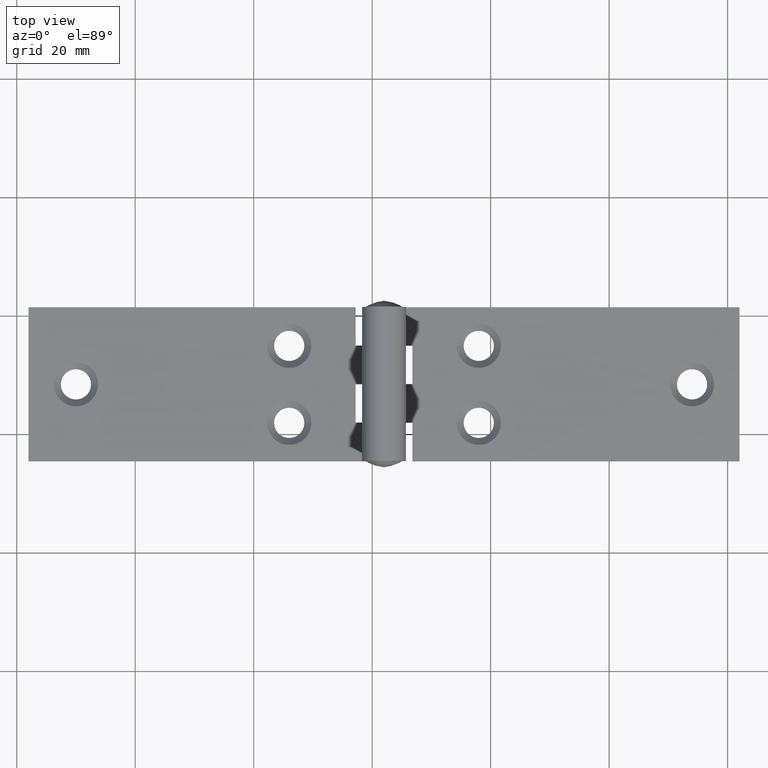
[diagram: clean part render]
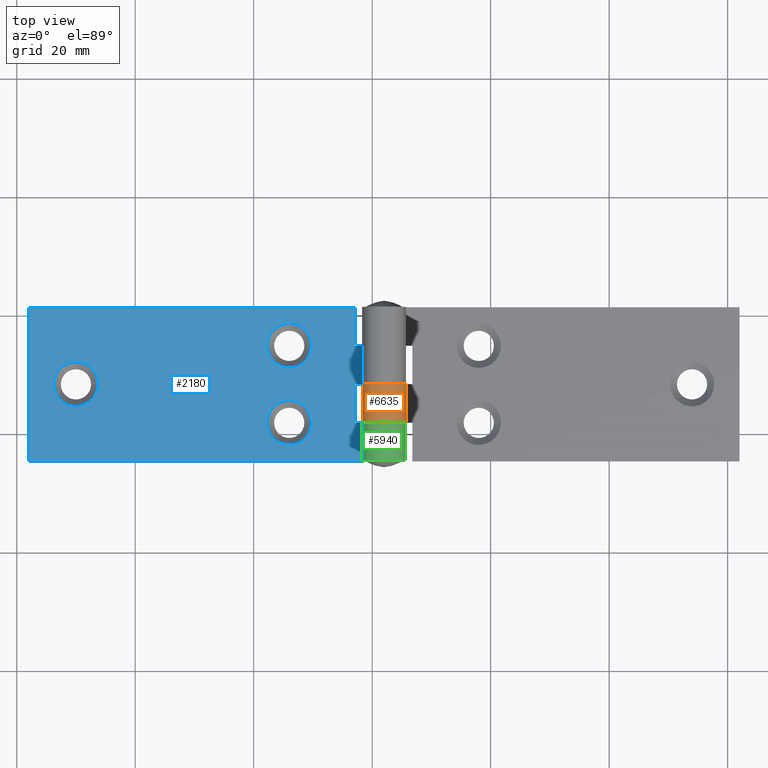
[diagram: same view with three faces highlighted in distinct colors, each labeled with its STEP entity id]
A machine part, top view with three faces highlighted in distinct colors.
Their STEP definitions:

[orange] entity #6635 — the highlighted cylindrical surface (edge-blend (fillet) strip) has radius 3.7 mm, axis along (0, 1, -0).
#126 = CARTESIAN_POINT ( 'NONE',  ( 60.00000000000000000, 6.500000000000000000, 0.000000000000000000 ) ) ;
#305 = CARTESIAN_POINT ( 'NONE',  ( 60.00000000000000000, 6.500000000000000000, 3.700000000000000178 ) ) ;
#861 = CARTESIAN_POINT ( 'NONE',  ( 60.00000000000000000, -1.249000902703299136E-15, 0.000000000000000000 ) ) ;
#1061 = VECTOR ( 'NONE', #2871, 1000.000000000000000 ) ;
#1103 = EDGE_CURVE ( 'NONE', #2914, #3187, #9356, .T. ) ;
#1182 = FACE_OUTER_BOUND ( 'NONE', #9848, .T. ) ;
#1580 = LINE ( 'NONE', #9441, #5711 ) ;
#1957 = CARTESIAN_POINT ( 'NONE',  ( 60.00000000000000000, 13.00000000000000000, 2.508278806333708124E-18 ) ) ;
#2081 = CIRCLE ( 'NONE', #4312, 3.700000000000001066 ) ;
#2871 = DIRECTION ( 'NONE',  ( -0.000000000000000000, -1.000000000000000000, -0.000000000000000000 ) ) ;
#2914 = VERTEX_POINT ( 'NONE', #126 ) ;
#3187 = VERTEX_POINT ( 'NONE', #861 ) ;
#3439 = ORIENTED_EDGE ( 'NONE', *, *, #11425, .T. ) ;
#3482 = AXIS2_PLACEMENT_3D ( 'NONE', #10464, #5176, #7776 ) ;
#3513 = CARTESIAN_POINT ( 'NONE',  ( 60.00000000000000000, 13.00000000000000000, 3.700000000000000178 ) ) ;
#3628 = DIRECTION ( 'NONE',  ( 0.000000000000000000, 0.000000000000000000, -1.000000000000000000 ) ) ;
#4312 = AXIS2_PLACEMENT_3D ( 'NONE', #305, #4661, #6503 ) ;
#4661 = DIRECTION ( 'NONE',  ( 0.000000000000000000, 1.000000000000000000, 0.000000000000000000 ) ) ;
#5176 = DIRECTION ( 'NONE',  ( 2.602085213965210149E-16, 1.000000000000000000, -0.000000000000000000 ) ) ;
#5482 = CARTESIAN_POINT ( 'NONE',  ( 57.18397443193425289, 6.500000000000000000, 1.300000000000001155 ) ) ;
#5544 = ORIENTED_EDGE ( 'NONE', *, *, #9196, .F. ) ;
#5711 = VECTOR ( 'NONE', #5908, 1000.000000000000000 ) ;
#5908 = DIRECTION ( 'NONE',  ( -0.000000000000000000, -1.000000000000000000, -0.000000000000000000 ) ) ;
#6350 = ORIENTED_EDGE ( 'NONE', *, *, #8824, .T. ) ;
#6503 = DIRECTION ( 'NONE',  ( 0.000000000000000000, 0.000000000000000000, 1.000000000000000000 ) ) ;
#6609 = VERTEX_POINT ( 'NONE', #6928 ) ;
#6635 = ADVANCED_FACE ( 'NONE', ( #1182 ), #8496, .T. ) ;
#6739 = VERTEX_POINT ( 'NONE', #5482 ) ;
#6928 = CARTESIAN_POINT ( 'NONE',  ( 57.18397443193425289, -1.001969626695620877E-15, 1.300000000000001155 ) ) ;
#7636 = ORIENTED_EDGE ( 'NONE', *, *, #1103, .F. ) ;
#7776 = DIRECTION ( 'NONE',  ( -1.000000000000000000, 2.602085213965209163E-16, 0.000000000000000000 ) ) ;
#8496 = CYLINDRICAL_SURFACE ( 'NONE', #8959, 3.700000000000001066 ) ;
#8584 = CIRCLE ( 'NONE', #3482, 3.700000000000001954 ) ;
#8824 = EDGE_CURVE ( 'NONE', #6739, #6609, #1580, .T. ) ;
#8885 = DIRECTION ( 'NONE',  ( -0.000000000000000000, -1.000000000000000000, -0.000000000000000000 ) ) ;
#8959 = AXIS2_PLACEMENT_3D ( 'NONE', #3513, #8885, #3628 ) ;
#9196 = EDGE_CURVE ( 'NONE', #6739, #2914, #2081, .T. ) ;
#9356 = LINE ( 'NONE', #1957, #1061 ) ;
#9441 = CARTESIAN_POINT ( 'NONE',  ( 57.18397443193425289, 13.00000000000000000, 1.300000000000000711 ) ) ;
#9848 = EDGE_LOOP ( 'NONE', ( #7636, #5544, #6350, #3439 ) ) ;
#10464 = CARTESIAN_POINT ( 'NONE',  ( 60.00000000000000000, -1.734723475976807094E-15, 3.700000000000000178 ) ) ;
#11425 = EDGE_CURVE ( 'NONE', #6609, #3187, #8584, .T. ) ;

[blue] entity #2180 — the highlighted planar face has unit normal (0, 0, -1).
#78 = DIRECTION ( 'NONE',  ( 0.000000000000000000, 1.000000000000000000, 0.000000000000000000 ) ) ;
#226 = VERTEX_POINT ( 'NONE', #5418 ) ;
#386 = EDGE_LOOP ( 'NONE', ( #3147 ) ) ;
#590 = LINE ( 'NONE', #1117, #10278 ) ;
#608 = CARTESIAN_POINT ( 'NONE',  ( 44.00000000000000000, -6.500000000000000000, 1.199999999999999956 ) ) ;
#646 = CARTESIAN_POINT ( 'NONE',  ( 40.24999999999997868, 6.500000000000000000, 1.199999999999999956 ) ) ;
#663 = ORIENTED_EDGE ( 'NONE', *, *, #1122, .T. ) ;
#697 = CARTESIAN_POINT ( 'NONE',  ( 55.20000000000000284, 13.00000000000000000, 1.199999999999999956 ) ) ;
#792 = CARTESIAN_POINT ( 'NONE',  ( 0.000000000000000000, 13.00000000000000000, 1.199999999999999956 ) ) ;
#1099 = LINE ( 'NONE', #7587, #6208 ) ;
#1117 = CARTESIAN_POINT ( 'NONE',  ( 60.00000000000000000, 13.00000000000000000, 1.199999999999997957 ) ) ;
#1122 = EDGE_CURVE ( 'NONE', #7770, #10318, #3262, .T. ) ;
#1123 = AXIS2_PLACEMENT_3D ( 'NONE', #608, #4229, #5065 ) ;
#1652 = CARTESIAN_POINT ( 'NONE',  ( 40.24999999999997868, -6.500000000000000000, 1.199999999999999956 ) ) ;
#1686 = DIRECTION ( 'NONE',  ( 0.000000000000000000, 0.000000000000000000, -1.000000000000000000 ) ) ;
#1731 = DIRECTION ( 'NONE',  ( -1.000000000000000000, 0.000000000000000000, 0.000000000000000000 ) ) ;
#1812 = VECTOR ( 'NONE', #2592, 1000.000000000000000 ) ;
#2163 = CARTESIAN_POINT ( 'NONE',  ( 60.00000000000000000, -13.00000000000000000, 1.199999999999997957 ) ) ;
#2180 = ADVANCED_FACE ( 'NONE', ( #8450, #2922, #2648, #4038 ), #9515, .F. ) ;
#2181 = CARTESIAN_POINT ( 'NONE',  ( 0.000000000000000000, -13.00000000000000000, 1.199999999999999956 ) ) ;
#2211 = LINE ( 'NONE', #2969, #5120 ) ;
#2254 = ORIENTED_EDGE ( 'NONE', *, *, #10009, .F. ) ;
#2363 = CARTESIAN_POINT ( 'NONE',  ( 55.20000000000000284, -6.500000000000000000, 1.200000000000001510 ) ) ;
#2401 = ORIENTED_EDGE ( 'NONE', *, *, #8217, .F. ) ;
#2592 = DIRECTION ( 'NONE',  ( 1.000000000000000000, 0.000000000000000000, 0.000000000000000000 ) ) ;
#2648 = FACE_BOUND ( 'NONE', #386, .T. ) ;
#2671 = EDGE_CURVE ( 'NONE', #10318, #10832, #4530, .T. ) ;
#2729 = DIRECTION ( 'NONE',  ( 0.000000000000000000, -1.000000000000000000, 0.000000000000000000 ) ) ;
#2848 = DIRECTION ( 'NONE',  ( -0.000000000000000000, -1.000000000000000000, -0.000000000000000000 ) ) ;
#2859 = VERTEX_POINT ( 'NONE', #10454 ) ;
#2869 = EDGE_LOOP ( 'NONE', ( #8019 ) ) ;
#2922 = FACE_BOUND ( 'NONE', #2869, .T. ) ;
#2969 = CARTESIAN_POINT ( 'NONE',  ( 0.000000000000000000, 13.00000000000000000, 1.199999999999999956 ) ) ;
#3057 = VERTEX_POINT ( 'NONE', #646 ) ;
#3147 = ORIENTED_EDGE ( 'NONE', *, *, #9672, .T. ) ;
#3167 = VECTOR ( 'NONE', #3351, 1000.000000000000000 ) ;
#3262 = LINE ( 'NONE', #5387, #6444 ) ;
#3313 = VECTOR ( 'NONE', #8143, 1000.000000000000000 ) ;
#3317 = ORIENTED_EDGE ( 'NONE', *, *, #10207, .T. ) ;
#3332 = DIRECTION ( 'NONE',  ( -1.000000000000000000, 0.000000000000000000, -0.000000000000000000 ) ) ;
#3351 = DIRECTION ( 'NONE',  ( -0.000000000000000000, -1.000000000000000000, -0.000000000000000000 ) ) ;
#3461 = DIRECTION ( 'NONE',  ( -0.000000000000000000, -1.000000000000000000, -0.000000000000000000 ) ) ;
#3945 = EDGE_CURVE ( 'NONE', #8839, #10832, #7117, .T. ) ;
#3972 = VECTOR ( 'NONE', #7512, 1000.000000000000000 ) ;
#4038 = FACE_OUTER_BOUND ( 'NONE', #9559, .T. ) ;
#4061 = CARTESIAN_POINT ( 'NONE',  ( 55.20000000000000284, 0.000000000000000000, 1.199999999999999956 ) ) ;
#4229 = DIRECTION ( 'NONE',  ( 0.000000000000000000, 0.000000000000000000, -1.000000000000000000 ) ) ;
#4345 = CARTESIAN_POINT ( 'NONE',  ( 55.20000000000000284, -13.00000000000000000, 1.199999999999999956 ) ) ;
#4390 = DIRECTION ( 'NONE',  ( 0.000000000000000000, 0.000000000000000000, -1.000000000000000000 ) ) ;
#4530 = LINE ( 'NONE', #4061, #3972 ) ;
#4660 = ORIENTED_EDGE ( 'NONE', *, *, #3945, .F. ) ;
#4743 = VERTEX_POINT ( 'NONE', #2181 ) ;
#5065 = DIRECTION ( 'NONE',  ( -1.000000000000000000, 0.000000000000000000, 0.000000000000000000 ) ) ;
#5120 = VECTOR ( 'NONE', #9040, 1000.000000000000000 ) ;
#5278 = VERTEX_POINT ( 'NONE', #8608 ) ;
#5367 = CARTESIAN_POINT ( 'NONE',  ( 60.00000000000000000, -6.499999999999997335, 1.199999999999997957 ) ) ;
#5387 = CARTESIAN_POINT ( 'NONE',  ( 55.20000000000000284, 13.00000000000000000, 1.199999999999999956 ) ) ;
#5418 = CARTESIAN_POINT ( 'NONE',  ( 55.20000000000000284, 13.00000000000000000, 1.200000000000000622 ) ) ;
#5456 = DIRECTION ( 'NONE',  ( -1.000000000000000000, 0.000000000000000000, 0.000000000000000000 ) ) ;
#5527 = CARTESIAN_POINT ( 'NONE',  ( 55.20000000000000284, 6.500000000000000000, 1.199999999999999956 ) ) ;
#5677 = EDGE_CURVE ( 'NONE', #10213, #226, #2211, .T. ) ;
#5730 = LINE ( 'NONE', #7847, #7515 ) ;
#6129 = AXIS2_PLACEMENT_3D ( 'NONE', #11360, #1686, #1731 ) ;
#6208 = VECTOR ( 'NONE', #6811, 1000.000000000000000 ) ;
#6378 = CARTESIAN_POINT ( 'NONE',  ( 8.000000000000000000, 0.000000000000000000, 1.199999999999999956 ) ) ;
#6444 = VECTOR ( 'NONE', #78, 1000.000000000000000 ) ;
#6499 = ORIENTED_EDGE ( 'NONE', *, *, #7155, .F. ) ;
#6541 = CIRCLE ( 'NONE', #6129, 3.750000000000017319 ) ;
#6603 = EDGE_LOOP ( 'NONE', ( #10739 ) ) ;
#6665 = CARTESIAN_POINT ( 'NONE',  ( 55.20000000000000284, 0.000000000000000000, 1.200000000000001510 ) ) ;
#6811 = DIRECTION ( 'NONE',  ( -1.000000000000000000, 0.000000000000000000, 0.000000000000000000 ) ) ;
#6914 = ORIENTED_EDGE ( 'NONE', *, *, #11312, .T. ) ;
#7101 = AXIS2_PLACEMENT_3D ( 'NONE', #697, #4390, #3332 ) ;
#7117 = LINE ( 'NONE', #7804, #9894 ) ;
#7155 = EDGE_CURVE ( 'NONE', #226, #2859, #5730, .T. ) ;
#7314 = CIRCLE ( 'NONE', #7829, 3.750000000000017319 ) ;
#7512 = DIRECTION ( 'NONE',  ( 1.000000000000000000, -2.602085213965210149E-16, 0.000000000000000000 ) ) ;
#7515 = VECTOR ( 'NONE', #2729, 1000.000000000000000 ) ;
#7587 = CARTESIAN_POINT ( 'NONE',  ( 55.20000000000000284, -6.499999999999997335, 1.199999999999999956 ) ) ;
#7726 = VERTEX_POINT ( 'NONE', #2163 ) ;
#7770 = VERTEX_POINT ( 'NONE', #2363 ) ;
#7801 = EDGE_CURVE ( 'NONE', #3057, #3057, #6541, .T. ) ;
#7804 = CARTESIAN_POINT ( 'NONE',  ( 60.00000000000000000, 13.00000000000000000, 1.199999999999997957 ) ) ;
#7829 = AXIS2_PLACEMENT_3D ( 'NONE', #6378, #10756, #5456 ) ;
#7847 = CARTESIAN_POINT ( 'NONE',  ( 55.20000000000000284, 13.00000000000000000, 1.199999999999999956 ) ) ;
#8019 = ORIENTED_EDGE ( 'NONE', *, *, #7801, .T. ) ;
#8143 = DIRECTION ( 'NONE',  ( 1.000000000000000000, -0.000000000000000000, 0.000000000000000000 ) ) ;
#8217 = EDGE_CURVE ( 'NONE', #9935, #7726, #590, .T. ) ;
#8450 = FACE_BOUND ( 'NONE', #6603, .T. ) ;
#8528 = CARTESIAN_POINT ( 'NONE',  ( 0.000000000000000000, 13.00000000000000000, 1.199999999999999956 ) ) ;
#8608 = CARTESIAN_POINT ( 'NONE',  ( 4.249999999999983125, 0.000000000000000000, 1.199999999999999956 ) ) ;
#8839 = VERTEX_POINT ( 'NONE', #10431 ) ;
#9040 = DIRECTION ( 'NONE',  ( 1.000000000000000000, 0.000000000000000000, 0.000000000000000000 ) ) ;
#9515 = PLANE ( 'NONE',  #7101 ) ;
#9533 = LINE ( 'NONE', #792, #3167 ) ;
#9555 = CIRCLE ( 'NONE', #1123, 3.750000000000017319 ) ;
#9559 = EDGE_LOOP ( 'NONE', ( #6499, #10705, #9816, #6914, #2401, #3317, #663, #10808, #4660, #2254 ) ) ;
#9586 = CARTESIAN_POINT ( 'NONE',  ( 60.00000000000000000, -1.734723475976806897E-15, 1.199999999999997957 ) ) ;
#9672 = EDGE_CURVE ( 'NONE', #5278, #5278, #7314, .T. ) ;
#9816 = ORIENTED_EDGE ( 'NONE', *, *, #10361, .T. ) ;
#9894 = VECTOR ( 'NONE', #3461, 1000.000000000000000 ) ;
#9935 = VERTEX_POINT ( 'NONE', #5367 ) ;
#10009 = EDGE_CURVE ( 'NONE', #2859, #8839, #10492, .T. ) ;
#10207 = EDGE_CURVE ( 'NONE', #9935, #7770, #1099, .T. ) ;
#10213 = VERTEX_POINT ( 'NONE', #8528 ) ;
#10278 = VECTOR ( 'NONE', #2848, 1000.000000000000000 ) ;
#10318 = VERTEX_POINT ( 'NONE', #6665 ) ;
#10361 = EDGE_CURVE ( 'NONE', #10213, #4743, #9533, .T. ) ;
#10431 = CARTESIAN_POINT ( 'NONE',  ( 60.00000000000000000, 6.500000000000000000, 1.199999999999997957 ) ) ;
#10454 = CARTESIAN_POINT ( 'NONE',  ( 55.20000000000000284, 6.500000000000000000, 1.200000000000001510 ) ) ;
#10492 = LINE ( 'NONE', #5527, #3313 ) ;
#10705 = ORIENTED_EDGE ( 'NONE', *, *, #5677, .F. ) ;
#10739 = ORIENTED_EDGE ( 'NONE', *, *, #11138, .T. ) ;
#10756 = DIRECTION ( 'NONE',  ( 0.000000000000000000, 0.000000000000000000, -1.000000000000000000 ) ) ;
#10801 = VERTEX_POINT ( 'NONE', #1652 ) ;
#10808 = ORIENTED_EDGE ( 'NONE', *, *, #2671, .T. ) ;
#10832 = VERTEX_POINT ( 'NONE', #9586 ) ;
#11138 = EDGE_CURVE ( 'NONE', #10801, #10801, #9555, .T. ) ;
#11223 = LINE ( 'NONE', #4345, #1812 ) ;
#11312 = EDGE_CURVE ( 'NONE', #4743, #7726, #11223, .T. ) ;
#11360 = CARTESIAN_POINT ( 'NONE',  ( 44.00000000000000000, 6.500000000000000000, 1.199999999999999956 ) ) ;

[green] entity #5940 — the highlighted cylindrical surface (edge-blend (fillet) strip) has radius 3.7 mm, axis along (-0, -1, -0).
#86 = DIRECTION ( 'NONE',  ( -0.000000000000000000, -1.000000000000000000, -0.000000000000000000 ) ) ;
#244 = VECTOR ( 'NONE', #502, 1000.000000000000000 ) ;
#502 = DIRECTION ( 'NONE',  ( -0.000000000000000000, -1.000000000000000000, -0.000000000000000000 ) ) ;
#617 = DIRECTION ( 'NONE',  ( 0.000000000000000000, 0.000000000000000000, -1.000000000000000000 ) ) ;
#1168 = CYLINDRICAL_SURFACE ( 'NONE', #7682, 3.700000000000001066 ) ;
#1201 = CARTESIAN_POINT ( 'NONE',  ( 57.18397443193425289, 13.00000000000000000, 1.300000000000000711 ) ) ;
#1226 = CARTESIAN_POINT ( 'NONE',  ( 60.00000000000000000, -6.499999999999997335, 3.700000000000000178 ) ) ;
#1323 = CARTESIAN_POINT ( 'NONE',  ( 60.00000000000000000, -13.00000000000000000, 2.508278806333708124E-18 ) ) ;
#1486 = EDGE_LOOP ( 'NONE', ( #2957, #5157, #11102, #2048 ) ) ;
#2048 = ORIENTED_EDGE ( 'NONE', *, *, #9452, .T. ) ;
#2101 = DIRECTION ( 'NONE',  ( 0.000000000000000000, 0.000000000000000000, -1.000000000000000000 ) ) ;
#2693 = CARTESIAN_POINT ( 'NONE',  ( 60.00000000000000000, 13.00000000000000000, 3.700000000000000178 ) ) ;
#2957 = ORIENTED_EDGE ( 'NONE', *, *, #10688, .F. ) ;
#3294 = CARTESIAN_POINT ( 'NONE',  ( 60.00000000000000000, -13.00000000000000000, 3.700000000000000178 ) ) ;
#3742 = CARTESIAN_POINT ( 'NONE',  ( 57.18397443193425289, -6.499999999999997335, 1.300000000000001155 ) ) ;
#4228 = EDGE_CURVE ( 'NONE', #5445, #4397, #5862, .T. ) ;
#4397 = VERTEX_POINT ( 'NONE', #7725 ) ;
#4670 = VERTEX_POINT ( 'NONE', #10170 ) ;
#5157 = ORIENTED_EDGE ( 'NONE', *, *, #10579, .T. ) ;
#5445 = VERTEX_POINT ( 'NONE', #3742 ) ;
#5862 = LINE ( 'NONE', #1201, #9603 ) ;
#5924 = CIRCLE ( 'NONE', #7614, 3.700000000000001066 ) ;
#5940 = ADVANCED_FACE ( 'NONE', ( #8441 ), #1168, .T. ) ;
#6441 = DIRECTION ( 'NONE',  ( -0.000000000000000000, -1.000000000000000000, -0.000000000000000000 ) ) ;
#7182 = CIRCLE ( 'NONE', #9036, 3.700000000000001066 ) ;
#7614 = AXIS2_PLACEMENT_3D ( 'NONE', #1226, #8202, #2101 ) ;
#7672 = VERTEX_POINT ( 'NONE', #1323 ) ;
#7682 = AXIS2_PLACEMENT_3D ( 'NONE', #2693, #86, #10661 ) ;
#7725 = CARTESIAN_POINT ( 'NONE',  ( 57.18397443193425289, -13.00000000000000000, 1.300000000000000711 ) ) ;
#8202 = DIRECTION ( 'NONE',  ( 0.000000000000000000, -1.000000000000000000, 0.000000000000000000 ) ) ;
#8441 = FACE_OUTER_BOUND ( 'NONE', #1486, .T. ) ;
#8619 = DIRECTION ( 'NONE',  ( 0.000000000000000000, 1.000000000000000000, -0.000000000000000000 ) ) ;
#9036 = AXIS2_PLACEMENT_3D ( 'NONE', #3294, #8619, #617 ) ;
#9122 = LINE ( 'NONE', #9332, #244 ) ;
#9332 = CARTESIAN_POINT ( 'NONE',  ( 60.00000000000000000, 13.00000000000000000, 2.508278806333708124E-18 ) ) ;
#9452 = EDGE_CURVE ( 'NONE', #4397, #7672, #7182, .T. ) ;
#9603 = VECTOR ( 'NONE', #6441, 1000.000000000000000 ) ;
#10170 = CARTESIAN_POINT ( 'NONE',  ( 60.00000000000000000, -6.500000000000000000, -0.000000000000000000 ) ) ;
#10579 = EDGE_CURVE ( 'NONE', #4670, #5445, #5924, .T. ) ;
#10661 = DIRECTION ( 'NONE',  ( 0.000000000000000000, 0.000000000000000000, -1.000000000000000000 ) ) ;
#10688 = EDGE_CURVE ( 'NONE', #4670, #7672, #9122, .T. ) ;
#11102 = ORIENTED_EDGE ( 'NONE', *, *, #4228, .T. ) ;